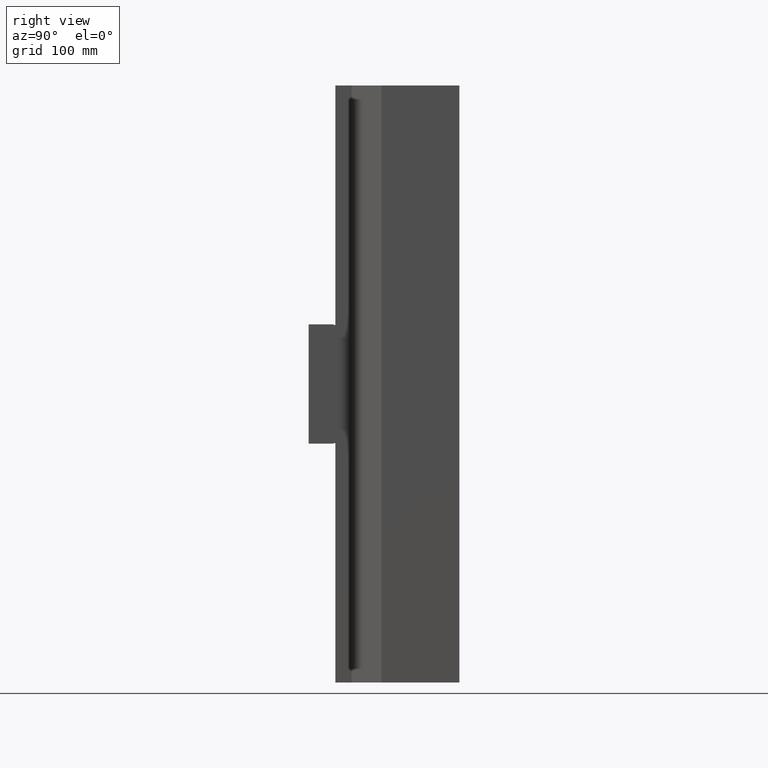
[diagram: clean part render]
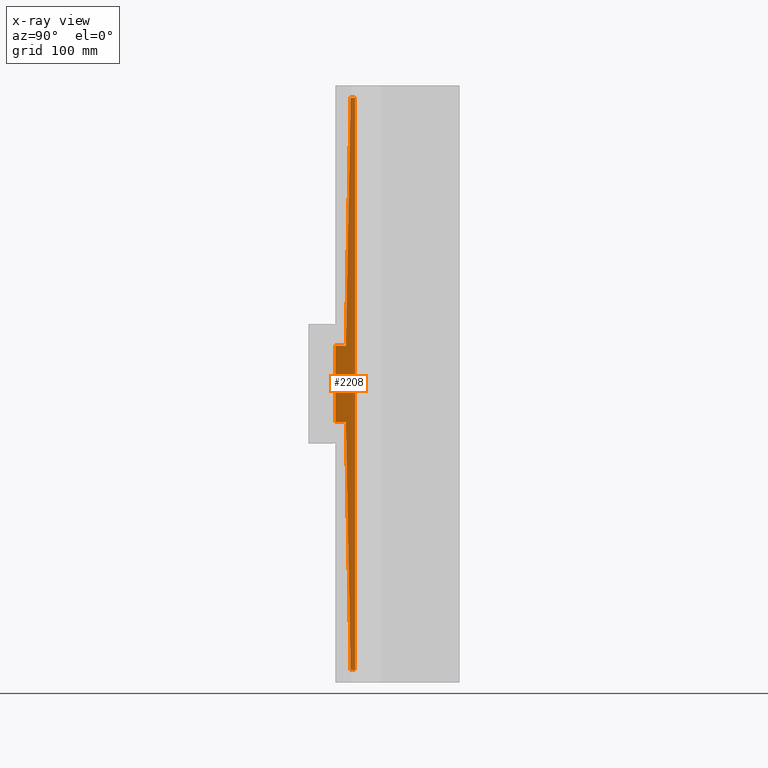
[diagram: x-ray — body ghosted, one internal face saturated and labeled with its STEP entity id]
A machine part, right view, then the same camera in x-ray: the body is ghosted and one INTERNAL B-rep face — a face not visible from any outside direction — is saturated and labeled: STEP entity #2208.
In plain terms, the highlighted planar face has unit normal (-1, -0, 0).
Its self-contained STEP definition (entity closure, byte-faithful):
#66 = ORIENTED_EDGE ( 'NONE', *, *, #2339, .T. ) ;
#76 = EDGE_CURVE ( 'NONE', #2384, #1391, #286, .T. ) ;
#161 = VECTOR ( 'NONE', #2267, 1000.000000000000000 ) ;
#196 = PLANE ( 'NONE',  #2077 ) ;
#206 = FACE_OUTER_BOUND ( 'NONE', #1461, .T. ) ;
#211 = DIRECTION ( 'NONE',  ( 1.301042606982607000E-016, -1.000000000000000000, 0.0000000000000000000 ) ) ;
#218 = VERTEX_POINT ( 'NONE', #605 ) ;
#225 = DIRECTION ( 'NONE',  ( 0.0000000000000000000, 0.0000000000000000000, 1.000000000000000000 ) ) ;
#243 = VECTOR ( 'NONE', #615, 1000.000000000000000 ) ;
#263 = CARTESIAN_POINT ( 'NONE',  ( 5.000000000000008900, -129.9999999999999700, -339.9999999999999400 ) ) ;
#286 = LINE ( 'NONE', #1176, #2590 ) ;
#325 = CARTESIAN_POINT ( 'NONE',  ( 5.000000000000006200, -110.0000000000000000, 0.0000000000000000000 ) ) ;
#369 = DIRECTION ( 'NONE',  ( -3.209238430557043800E-015, 1.000000000000000000, 0.0000000000000000000 ) ) ;
#464 = ORIENTED_EDGE ( 'NONE', *, *, #2235, .F. ) ;
#471 = ORIENTED_EDGE ( 'NONE', *, *, #76, .F. ) ;
#487 = VECTOR ( 'NONE', #369, 1000.000000000000000 ) ;
#542 = VERTEX_POINT ( 'NONE', #860 ) ;
#560 = CARTESIAN_POINT ( 'NONE',  ( 5.000000000000004400, -114.0000000000001000, -600.0000000000000000 ) ) ;
#580 = EDGE_CURVE ( 'NONE', #1391, #2525, #1862, .T. ) ;
#581 = ORIENTED_EDGE ( 'NONE', *, *, #1265, .T. ) ;
#594 = CARTESIAN_POINT ( 'NONE',  ( 5.000000000000006200, -110.0000000000000000, -600.0000000000000000 ) ) ;
#605 = CARTESIAN_POINT ( 'NONE',  ( 5.000000000000060400, -109.4594594594594500, 0.0000000000000000000 ) ) ;
#615 = DIRECTION ( 'NONE',  ( -2.501542492855944900E-018, 0.01922721423134289900, -0.9998151400298467300 ) ) ;
#663 = VECTOR ( 'NONE', #2683, 1000.000000000000000 ) ;
#670 = ORIENTED_EDGE ( 'NONE', *, *, #2764, .F. ) ;
#733 = DIRECTION ( 'NONE',  ( 0.0000000000000000000, -0.0000000000000000000, -1.000000000000000000 ) ) ;
#855 = ORIENTED_EDGE ( 'NONE', *, *, #2290, .T. ) ;
#860 = CARTESIAN_POINT ( 'NONE',  ( 5.000000000000008900, -129.9999999999999700, -260.0000000000000000 ) ) ;
#955 = VECTOR ( 'NONE', #1977, 1000.000000000000000 ) ;
#1176 = CARTESIAN_POINT ( 'NONE',  ( 5.000000000000004400, -129.9999999999999400, -339.9999999999999400 ) ) ;
#1244 = LINE ( 'NONE', #2239, #2376 ) ;
#1252 = ORIENTED_EDGE ( 'NONE', *, *, #580, .F. ) ;
#1265 = EDGE_CURVE ( 'NONE', #1834, #218, #2263, .T. ) ;
#1316 = LINE ( 'NONE', #1544, #663 ) ;
#1391 = VERTEX_POINT ( 'NONE', #1869 ) ;
#1461 = EDGE_LOOP ( 'NONE', ( #855, #670, #464, #581, #66, #1481, #1252, #471 ) ) ;
#1481 = ORIENTED_EDGE ( 'NONE', *, *, #1517, .T. ) ;
#1497 = CARTESIAN_POINT ( 'NONE',  ( 5.000000000000007100, -114.0000000000001000, 0.0000000000000000000 ) ) ;
#1517 = EDGE_CURVE ( 'NONE', #2213, #2525, #1547, .T. ) ;
#1535 = DIRECTION ( 'NONE',  ( -1.000000000000000000, -1.301042606982607000E-016, 0.0000000000000000000 ) ) ;
#1544 = CARTESIAN_POINT ( 'NONE',  ( 5.000000000000004400, -114.0000000000001000, -6.846246969366072900E-016 ) ) ;
#1547 = LINE ( 'NONE', #594, #955 ) ;
#1581 = CARTESIAN_POINT ( 'NONE',  ( 5.000000000000004400, -129.9999999999999400, -260.0000000000000000 ) ) ;
#1630 = LINE ( 'NONE', #2298, #2240 ) ;
#1662 = VERTEX_POINT ( 'NONE', #2252 ) ;
#1834 = VERTEX_POINT ( 'NONE', #1497 ) ;
#1862 = LINE ( 'NONE', #560, #243 ) ;
#1869 = CARTESIAN_POINT ( 'NONE',  ( 5.000000000000008000, -119.0000000000000100, -339.9999999999999400 ) ) ;
#1974 = CARTESIAN_POINT ( 'NONE',  ( 5.000000000000006200, -110.0000000000000000, -613.0000000000000000 ) ) ;
#1977 = DIRECTION ( 'NONE',  ( 3.209238430557043400E-015, -1.000000000000000000, -0.0000000000000000000 ) ) ;
#1986 = CARTESIAN_POINT ( 'NONE',  ( 5.000000000000004400, -109.4594594594594500, -600.0000000000000000 ) ) ;
#2077 = AXIS2_PLACEMENT_3D ( 'NONE', #1974, #1535, #211 ) ;
#2084 = LINE ( 'NONE', #1581, #161 ) ;
#2208 = ADVANCED_FACE ( 'NONE', ( #206 ), #196, .T. ) ;
#2213 = VERTEX_POINT ( 'NONE', #1986 ) ;
#2235 = EDGE_CURVE ( 'NONE', #1834, #1662, #1316, .T. ) ;
#2239 = CARTESIAN_POINT ( 'NONE',  ( 5.000000000000008900, -129.9999999999999700, -613.0000000000000000 ) ) ;
#2240 = VECTOR ( 'NONE', #733, 1000.000000000000000 ) ;
#2252 = CARTESIAN_POINT ( 'NONE',  ( 5.000000000000007100, -119.0000000000000300, -260.0000000000000000 ) ) ;
#2263 = LINE ( 'NONE', #325, #487 ) ;
#2267 = DIRECTION ( 'NONE',  ( 1.301042606982607000E-016, -1.000000000000000000, 0.0000000000000000000 ) ) ;
#2290 = EDGE_CURVE ( 'NONE', #2384, #542, #1244, .T. ) ;
#2298 = CARTESIAN_POINT ( 'NONE',  ( 5.000000000000004400, -109.4594594594594500, 399.0051813123757300 ) ) ;
#2339 = EDGE_CURVE ( 'NONE', #218, #2213, #1630, .T. ) ;
#2376 = VECTOR ( 'NONE', #225, 1000.000000000000000 ) ;
#2384 = VERTEX_POINT ( 'NONE', #263 ) ;
#2394 = CARTESIAN_POINT ( 'NONE',  ( 5.000000000000007100, -114.0000000000001000, -600.0000000000000000 ) ) ;
#2472 = DIRECTION ( 'NONE',  ( -1.301042606982607000E-016, 1.000000000000000000, 0.0000000000000000000 ) ) ;
#2525 = VERTEX_POINT ( 'NONE', #2394 ) ;
#2590 = VECTOR ( 'NONE', #2472, 1000.000000000000000 ) ;
#2683 = DIRECTION ( 'NONE',  ( 2.501542492855944900E-018, -0.01922721423134289900, -0.9998151400298467300 ) ) ;
#2764 = EDGE_CURVE ( 'NONE', #1662, #542, #2084, .T. ) ;